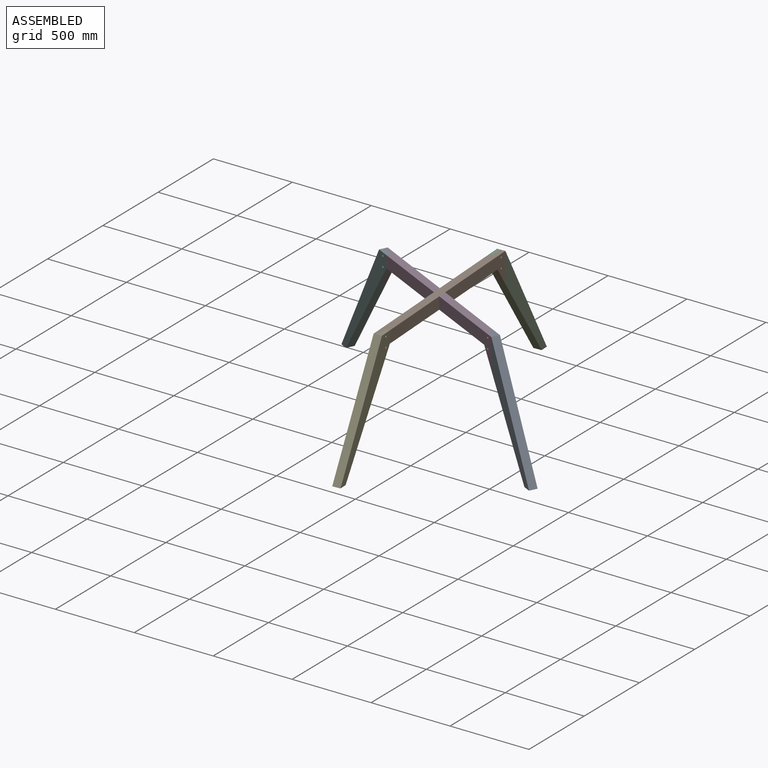
[diagram: assembled view]
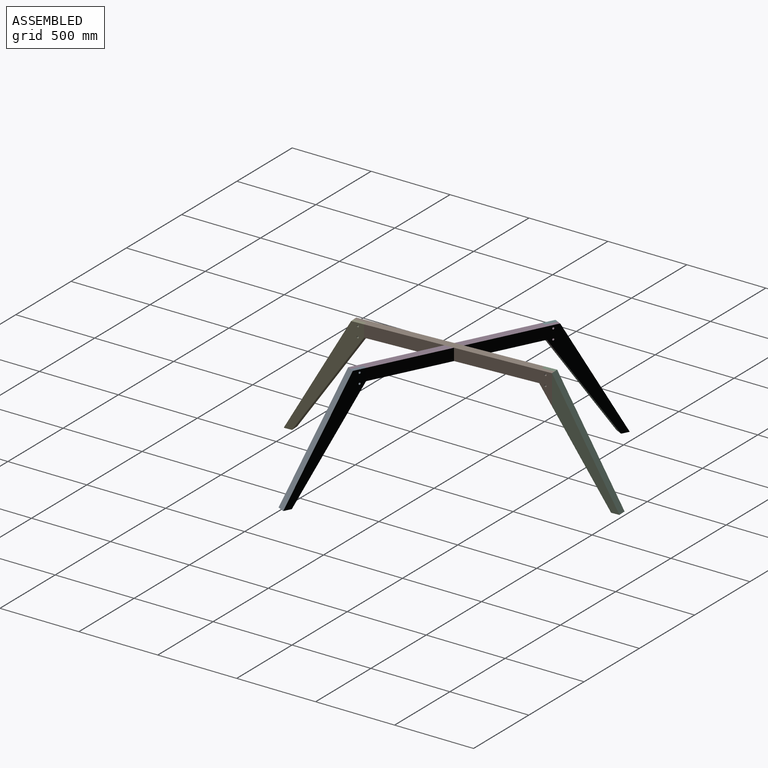
[diagram: assembled view, second angle]
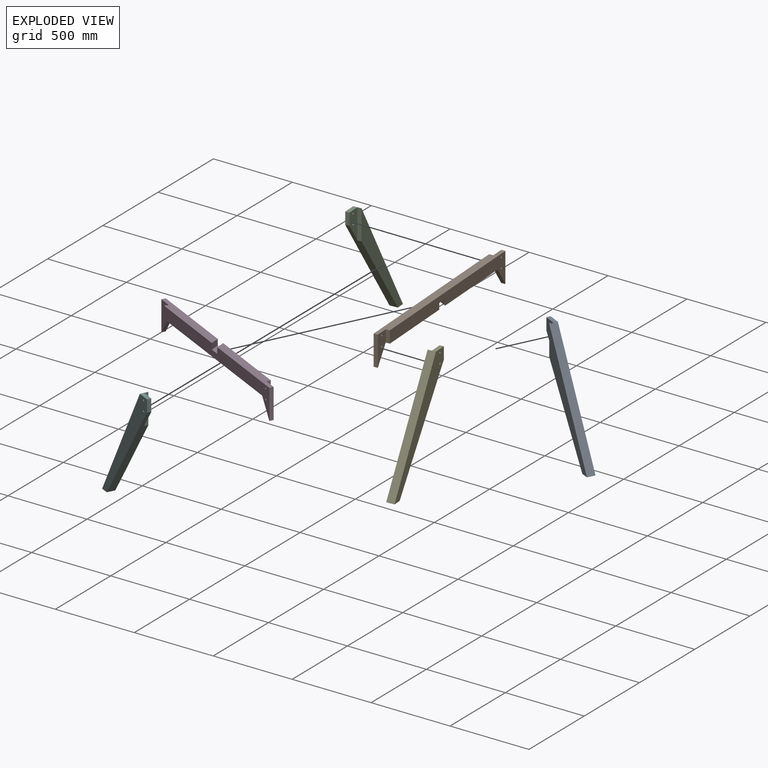
[diagram: exploded view]
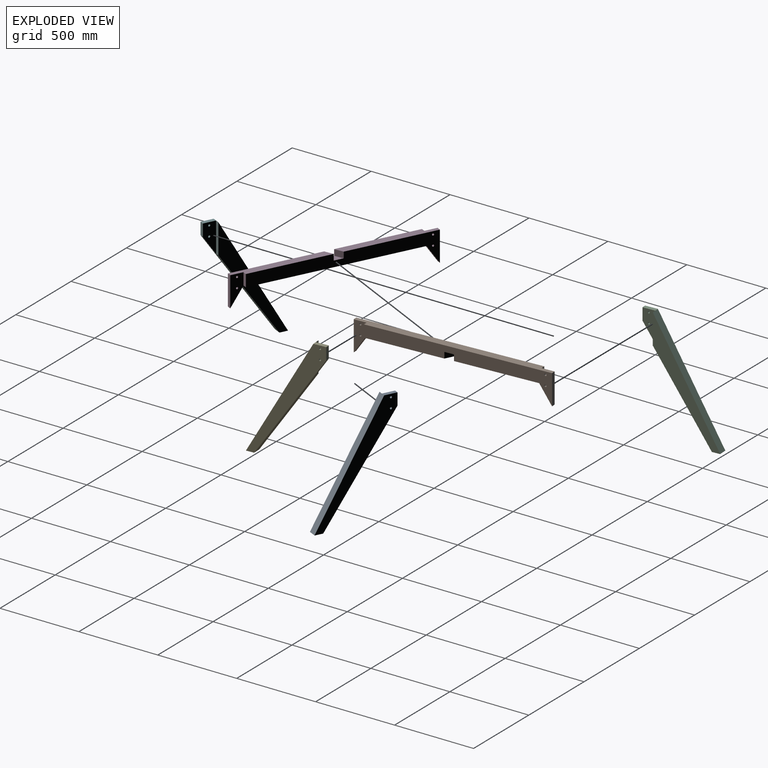
[diagram: exploded view, second angle]
ASSEMBLY  parts=6 mates=11
PART A: 11 faces, bbox 448.7x264.1x711.2 mm
  f0: plane 81.41x57.74mm, normal (0,0,1), area 1989.3mm2, adj f2,f4,f6,f7
  f1: plane 635x403.24mm, normal (0.74,-0.37,-0.57), area 35688.4mm2, adj f2,f3,f5,f6,f7,f8
  f2: plane 711.2x437.31mm, normal (-0.45,-0.89,0), area 62354mm2, adj f0,f1,f4,f5,f7,f9,f10
  f3: plane 711.2x367.26mm, normal (0.45,0.89,0), area 52194.5mm2, adj f1,f4,f5,f8
  f4: plane 711.2x389.98mm, normal (-0.77,0.39,0.5), area 41718.1mm2, adj f0,f2,f3,f5,f8
  f5: plane 68.16x68.16mm, normal (0,0,-1), area 2580.6mm2, adj f1,f2,f3,f4
  f6: plane 189.71x70.05mm, normal (0.45,0.89,0), area 10159.5mm2, adj f0,f1,f7,f8,f9,f10
  f7: plane 76.2x22.72mm, normal (0.89,-0.45,0), area 1935.5mm2, adj f0,f1,f2,f6
  f8: plane 189.71x22.72mm, normal (0.89,-0.45,0), area 4818.6mm2, adj f1,f3,f4,f6
  f9: cylinder r=6.35mm len=28.4mm, axis (0.45,0.89,0), area 1013.4mm2, adj f2,f6
  f10: cylinder r=6.35mm len=28.4mm, axis (0.45,0.89,0), area 1013.4mm2, adj f2,f6
PART B: 20 faces, bbox 1094.3x592.6x189.7 mm
  f0: plane 486.69x264.31mm, normal (0,0,-1), area 25606.8mm2, adj f1,f4,f5,f9,f13
  f1: plane 1024.23x512.11mm, normal (-0.45,-0.89,0), area 89214.8mm2, adj f0,f2,f4,f6,f8,f11,f13,f14
  f2: plane 1094.28x592.58mm, normal (0,0,1), area 58172mm2, adj f1,f5,f7,f8,f9,f10,f11,f12
  f3: plane 113.51x81.41mm, normal (0.74,-0.37,-0.57), area 3502.9mm2, adj f5,f6,f10,f12
  f4: plane 113.51x81.41mm, normal (-0.74,0.37,-0.57), area 3502.9mm2, adj f0,f1,f7,f8
  f5: plane 1024.23x512.11mm, normal (0.45,0.89,0), area 89214.8mm2, adj f0,f2,f3,f6,f9,f12,f13,f14
  f6: plane 486.69x264.31mm, normal (0,0,-1), area 25606.8mm2, adj f1,f3,f5,f11,f14
  f7: plane 189.71x70.05mm, normal (0.45,0.89,0), area 10159.5mm2, adj f2,f4,f8,f9,f18,f19
  f8: plane 189.71x22.72mm, normal (0.89,-0.45,0), area 4818.6mm2, adj f1,f2,f4,f7
  f9: plane 76.2x22.72mm, normal (0.89,-0.45,0), area 1935.5mm2, adj f0,f2,f5,f7
  f10: plane 189.71x70.05mm, normal (-0.45,-0.89,0), area 10159.5mm2, adj f2,f3,f11,f12,f16,f17
  f11: plane 76.2x22.72mm, normal (-0.89,0.45,0), area 1935.5mm2, adj f1,f2,f6,f10
  f12: plane 189.71x22.72mm, normal (-0.89,0.45,0), area 4818.6mm2, adj f2,f3,f5,f10
  f13: plane 48.95x38.1mm, normal (-0.55,0.83,0), area 2234.9mm2, adj f0,f1,f5,f15
  f14: plane 48.95x38.1mm, normal (0.55,-0.83,0), area 2234.9mm2, adj f1,f5,f6,f15
  f15: plane 101.42x58.55mm, normal (0,0,-1), area 2979.9mm2, adj f1,f5,f13,f14
  f16: cylinder r=6.35mm len=28.4mm, axis (-0.45,-0.89,0), area 1013.4mm2, adj f5,f10
  f17: cylinder r=6.35mm len=28.4mm, axis (-0.45,-0.89,0), area 1013.4mm2, adj f5,f10
  f18: cylinder r=6.35mm len=28.4mm, axis (0.45,0.89,0), area 1013.4mm2, adj f1,f7
  f19: cylinder r=6.35mm len=28.4mm, axis (0.45,0.89,0), area 1013.4mm2, adj f1,f7
PART C: same geometry as A
PART D: 20 faces, bbox 1094.3x592.6x189.7 mm
  f0: plane 522.66x312.45mm, normal (0,0,1), area 27596.1mm2, adj f1,f5,f10,f11,f12,f14
  f1: plane 1024.23x512.11mm, normal (-0.45,-0.89,0), area 89214.8mm2, adj f0,f2,f4,f6,f8,f11,f13,f14
  f2: plane 522.66x312.45mm, normal (0,0,1), area 27596.1mm2, adj f1,f5,f7,f8,f9,f13
  f3: plane 113.51x81.41mm, normal (0.74,-0.37,-0.57), area 3502.9mm2, adj f5,f6,f10,f12
  f4: plane 113.51x81.41mm, normal (-0.74,0.37,-0.57), area 3502.9mm2, adj f1,f6,f7,f8
  f5: plane 1024.23x512.11mm, normal (0.45,0.89,0), area 89214.8mm2, adj f0,f2,f3,f6,f9,f12,f13,f14
  f6: plane 976.89x522.52mm, normal (0,0,-1), area 54193.4mm2, adj f1,f3,f4,f5,f9,f11
  f7: plane 189.71x70.05mm, normal (0.45,0.89,0), area 10159.5mm2, adj f2,f4,f8,f9,f18,f19
  f8: plane 189.71x22.72mm, normal (0.89,-0.45,0), area 4818.6mm2, adj f1,f2,f4,f7
  f9: plane 76.2x22.72mm, normal (0.89,-0.45,0), area 1935.5mm2, adj f2,f5,f6,f7
  f10: plane 189.71x70.05mm, normal (-0.45,-0.89,0), area 10159.5mm2, adj f0,f3,f11,f12,f16,f17
  f11: plane 76.2x22.72mm, normal (-0.89,0.45,0), area 1935.5mm2, adj f0,f1,f6,f10
  f12: plane 189.71x22.72mm, normal (-0.89,0.45,0), area 4818.6mm2, adj f0,f3,f5,f10
  f13: plane 58.55x38.1mm, normal (-1,-0.06,0), area 2234.9mm2, adj f1,f2,f5,f15
  f14: plane 58.55x38.1mm, normal (1,0.06,0), area 2234.9mm2, adj f0,f1,f5,f15
  f15: plane 84.79x55.98mm, normal (0,0,1), area 2979.9mm2, adj f1,f5,f13,f14
  f16: cylinder r=6.35mm len=28.4mm, axis (-0.45,-0.89,0), area 1013.4mm2, adj f5,f10
  f17: cylinder r=6.35mm len=28.4mm, axis (-0.45,-0.89,0), area 1013.4mm2, adj f5,f10
  f18: cylinder r=6.35mm len=28.4mm, axis (0.45,0.89,0), area 1013.4mm2, adj f1,f7
  f19: cylinder r=6.35mm len=28.4mm, axis (0.45,0.89,0), area 1013.4mm2, adj f1,f7
PART E: same geometry as A
PART F: same geometry as A
PLACE A rot(axis=(0,0,1),180deg) t=(-171.69,6.78,279.11)mm
PLACE B rot(axis=(0,0,1),120deg) t=(-171.69,6.78,279.11)mm
PLACE C rot(axis=(0,0,-1),60deg) t=(-171.69,6.78,279.11)mm
PLACE D t=(-171.69,6.78,279.11)mm fixed
PLACE E rot(axis=(0,0,1),120deg) t=(-171.69,6.78,279.11)mm
PLACE F t=(-171.69,6.78,279.11)mm
MATE planar B.f13 <-> D.f5  axis (-0.45,-0.89,0) through (-173.44,36.05,196.56)mm
MATE revolute D.f18 <-> A.f9  axis (0.45,0.89,0) through (339.48,-248.81,171.16)mm
MATE revolute C.f9 <-> B.f18  axis (1,0.06,0) through (-205.93,577.25,171.16)mm
MATE planar B.f5 <-> D.f14  axis (-1,-0.06,0) through (-193.07,-60.85,212.33)mm
MATE planar D.f15 <-> B.f15  axis (0,0,1) through (-171.69,6.78,215.61)mm
MATE revolute F.f10 <-> D.f16  axis (0.45,0.89,0) through (-682.85,262.36,234.66)mm
MATE revolute B.f19 <-> C.f10  axis (-1,-0.06,0) through (-205.93,577.25,234.66)mm
MATE revolute D.f17 <-> F.f9  axis (-0.45,-0.89,0) through (-682.85,262.36,171.16)mm
MATE revolute A.f10 <-> D.f19  axis (-0.45,-0.89,0) through (339.48,-248.81,234.66)mm
MATE revolute E.f9 <-> B.f17  axis (-1,-0.06,0) through (-137.44,-563.7,171.16)mm
MATE revolute B.f16 <-> E.f10  axis (1,0.06,0) through (-137.44,-563.7,234.66)mm
